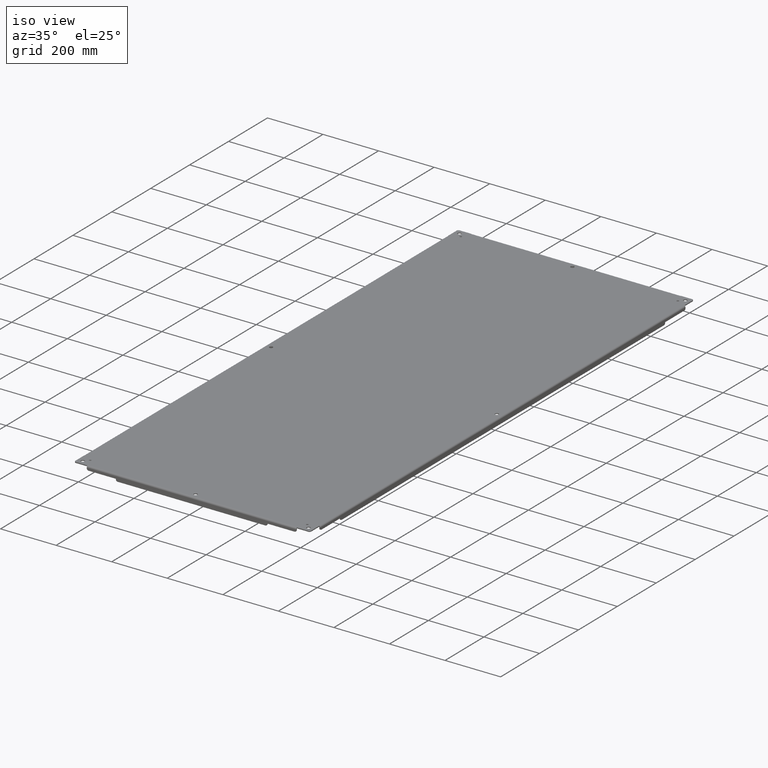
[diagram: clean part render]
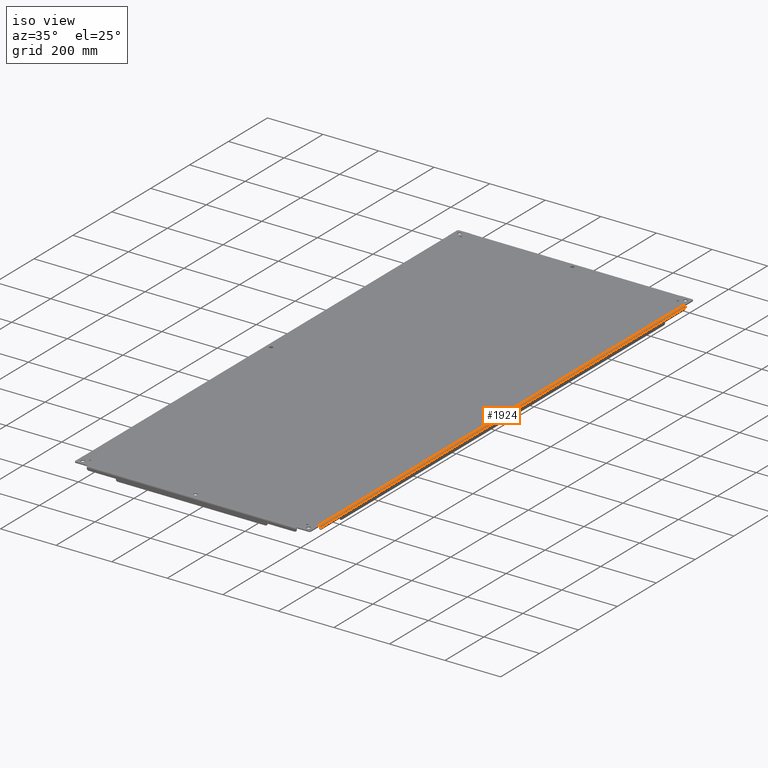
[diagram: same view with one face highlighted and labeled with its STEP entity id]
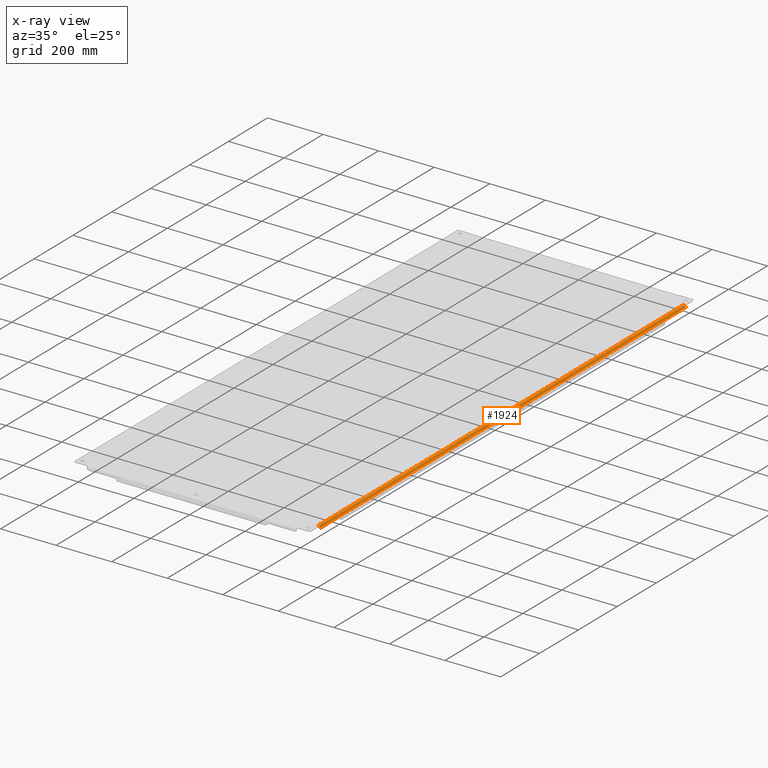
[diagram: x-ray of the same camera — body ghosted, the highlighted face saturated]
A machine part, iso view. The second image highlights one B-rep face of the part: STEP entity #1924.
The next image is the same camera in x-ray: the body ghosted, the highlighted face saturated — about 0% of this face is hidden behind the body in this view.
In plain terms, the highlighted cylindrical surface (edge-blend (fillet) strip) has radius 6.0198 mm, axis along (0, -1, 0).
Its self-contained STEP definition (entity closure, byte-faithful):
#256 = VERTEX_POINT ( 'NONE', #410 ) ;
#332 = ORIENTED_EDGE ( 'NONE', *, *, #940, .F. ) ;
#346 = EDGE_LOOP ( 'NONE', ( #523, #1626, #332, #446, #1204, #2351 ) ) ;
#347 = CARTESIAN_POINT ( 'NONE',  ( 16.75729026435098845, 36.96875000000189004, -0.05395184019269315401 ) ) ;
#410 = CARTESIAN_POINT ( 'NONE',  ( 16.84375000000000000, 36.96875000000000000, -0.2369999999999999885 ) ) ;
#446 = ORIENTED_EDGE ( 'NONE', *, *, #3130, .T. ) ;
#495 = LINE ( 'NONE', #1795, #2672 ) ;
#523 = ORIENTED_EDGE ( 'NONE', *, *, #1715, .T. ) ;
#597 = CARTESIAN_POINT ( 'NONE',  ( 16.75729026435067581, -36.96875000000115818, -0.05395184019244359669 ) ) ;
#689 = CARTESIAN_POINT ( 'NONE',  ( 16.60674999999996970, 36.96874999999999289, 3.165637069527538372E-17 ) ) ;
#728 = CARTESIAN_POINT ( 'NONE',  ( 16.71230025366778449, -36.96875000000000000, -0.02306723449816606292 ) ) ;
#751 = CARTESIAN_POINT ( 'NONE',  ( 16.60674999999984180, -36.96874999999999289, 4.155896150892343282E-18 ) ) ;
#796 = AXIS2_PLACEMENT_3D ( 'NONE', #3393, #3688, #3665 ) ;
#828 = EDGE_CURVE ( 'NONE', #3040, #256, #495, .T. ) ;
#882 = CARTESIAN_POINT ( 'NONE',  ( 16.60675000000000168, 0.0000000000000000000, 0.0000000000000000000 ) ) ;
#940 = EDGE_CURVE ( 'NONE', #1939, #2794, #1560, .T. ) ;
#945 = CARTESIAN_POINT ( 'NONE',  ( 16.68710358668162286, 36.96875000000253664, -0.01279170353364726502 ) ) ;
#985 = VERTEX_POINT ( 'NONE', #597 ) ;
#1115 = CARTESIAN_POINT ( 'NONE',  ( 16.66111588764062290, -36.96875000000000000, -0.004723366509577666197 ) ) ;
#1194 = AXIS2_PLACEMENT_3D ( 'NONE', #2314, #3896, #1909 ) ;
#1204 = ORIENTED_EDGE ( 'NONE', *, *, #1459, .T. ) ;
#1281 = CARTESIAN_POINT ( 'NONE',  ( 16.64752892643889481, 36.96875000000090949, -0.002344651641723890720 ) ) ;
#1357 = CARTESIAN_POINT ( 'NONE',  ( 16.75729026435098845, 36.96875000000189004, -0.05395184019269315401 ) ) ;
#1456 = CARTESIAN_POINT ( 'NONE',  ( 16.75729026435067581, -36.96875000000115818, -0.05395184019244359669 ) ) ;
#1459 = EDGE_CURVE ( 'NONE', #985, #3040, #2429, .T. ) ;
#1465 = AXIS2_PLACEMENT_3D ( 'NONE', #2877, #4172, #3806 ) ;
#1560 = LINE ( 'NONE', #882, #3344 ) ;
#1626 = ORIENTED_EDGE ( 'NONE', *, *, #1636, .F. ) ;
#1636 = EDGE_CURVE ( 'NONE', #2794, #3679, #2847, .T. ) ;
#1715 = EDGE_CURVE ( 'NONE', #256, #3679, #2214, .T. ) ;
#1795 = CARTESIAN_POINT ( 'NONE',  ( 16.84375000000000355, 36.96875000000000000, -0.2369999999999999885 ) ) ;
#1909 = DIRECTION ( 'NONE',  ( 0.0000000000000000000, 0.0000000000000000000, -1.000000000000000000 ) ) ;
#1924 = ADVANCED_FACE ( 'NONE', ( #2501 ), #4190, .T. ) ;
#1939 = VERTEX_POINT ( 'NONE', #3213 ) ;
#1991 = CARTESIAN_POINT ( 'NONE',  ( 16.74679160157656455, 36.96875000000446931, -0.04531765631994382620 ) ) ;
#2034 = CARTESIAN_POINT ( 'NONE',  ( 16.73629293880527058, -36.96875000000000000, -0.03668347244849815003 ) ) ;
#2182 = DIRECTION ( 'NONE',  ( -0.0000000000000000000, 1.000000000000000000, 0.0000000000000000000 ) ) ;
#2214 = CIRCLE ( 'NONE', #1194, 0.2369999999999999885 ) ;
#2296 = CARTESIAN_POINT ( 'NONE',  ( 16.72430515075499358, 36.96874999999933920, -0.02986033724496662753 ) ) ;
#2314 = CARTESIAN_POINT ( 'NONE',  ( 16.60675000000000168, 36.96875000000000000, -0.2369999999999999885 ) ) ;
#2351 = ORIENTED_EDGE ( 'NONE', *, *, #828, .T. ) ;
#2359 = CARTESIAN_POINT ( 'NONE',  ( 16.60674999999996970, 36.96874999999999289, 3.165637069527538372E-17 ) ) ;
#2429 = CIRCLE ( 'NONE', #796, 0.2369999999999999885 ) ;
#2501 = FACE_OUTER_BOUND ( 'NONE', #346, .T. ) ;
#2672 = VECTOR ( 'NONE', #3090, 39.37007874015748143 ) ;
#2794 = VERTEX_POINT ( 'NONE', #2359 ) ;
#2847 = B_SPLINE_CURVE_WITH_KNOTS ( 'NONE', 3,
 ( #689, #3559, #1281, #945, #2296, #1991, #347 ),
 .UNSPECIFIED., .F., .F.,
 ( 4, 1, 1, 1, 4 ),
 ( 0.0000000000000000000, 0.2499999999914740978, 0.4999999999872470902, 0.7499999999830201380, 1.000000000000000000 ),
 .UNSPECIFIED. ) ;
#2877 = CARTESIAN_POINT ( 'NONE',  ( 16.60675000000000168, 36.96875000000000000, -0.2369999999999999885 ) ) ;
#2883 = CARTESIAN_POINT ( 'NONE',  ( 16.84375000000000000, -36.96875000000000000, -0.2369999999999999885 ) ) ;
#3040 = VERTEX_POINT ( 'NONE', #2883 ) ;
#3090 = DIRECTION ( 'NONE',  ( -0.0000000000000000000, 1.000000000000000000, -0.0000000000000000000 ) ) ;
#3130 = EDGE_CURVE ( 'NONE', #1939, #985, #3431, .T. ) ;
#3213 = CARTESIAN_POINT ( 'NONE',  ( 16.60674999999984180, -36.96874999999999289, 4.155896150892343282E-18 ) ) ;
#3344 = VECTOR ( 'NONE', #2182, 39.37007874015748143 ) ;
#3393 = CARTESIAN_POINT ( 'NONE',  ( 16.60675000000000168, -36.96875000000000000, -0.2369999999999999885 ) ) ;
#3431 = B_SPLINE_CURVE_WITH_KNOTS ( 'NONE', 3,
 ( #751, #3641, #1115, #728, #2034, #1456 ),
 .UNSPECIFIED., .F., .F.,
 ( 4, 2, 4 ),
 ( 0.0000000000000000000, 0.5000000000000000000, 1.000000000000000000 ),
 .UNSPECIFIED. ) ;
#3559 = CARTESIAN_POINT ( 'NONE',  ( 16.62034305157531833, 36.96874999999987921, -4.015089569652996899E-14 ) ) ;
#3641 = CARTESIAN_POINT ( 'NONE',  ( 16.63393610315209870, -36.96875000000000000, -4.802076551362960763E-18 ) ) ;
#3665 = DIRECTION ( 'NONE',  ( 0.0000000000000000000, 0.0000000000000000000, -1.000000000000000000 ) ) ;
#3679 = VERTEX_POINT ( 'NONE', #1357 ) ;
#3688 = DIRECTION ( 'NONE',  ( -0.0000000000000000000, 1.000000000000000000, -0.0000000000000000000 ) ) ;
#3806 = DIRECTION ( 'NONE',  ( 0.0000000000000000000, 0.0000000000000000000, -1.000000000000000000 ) ) ;
#3896 = DIRECTION ( 'NONE',  ( 0.0000000000000000000, -1.000000000000000000, 0.0000000000000000000 ) ) ;
#4172 = DIRECTION ( 'NONE',  ( 0.0000000000000000000, -1.000000000000000000, 0.0000000000000000000 ) ) ;
#4190 = CYLINDRICAL_SURFACE ( 'NONE', #1465, 0.2369999999999999885 ) ;